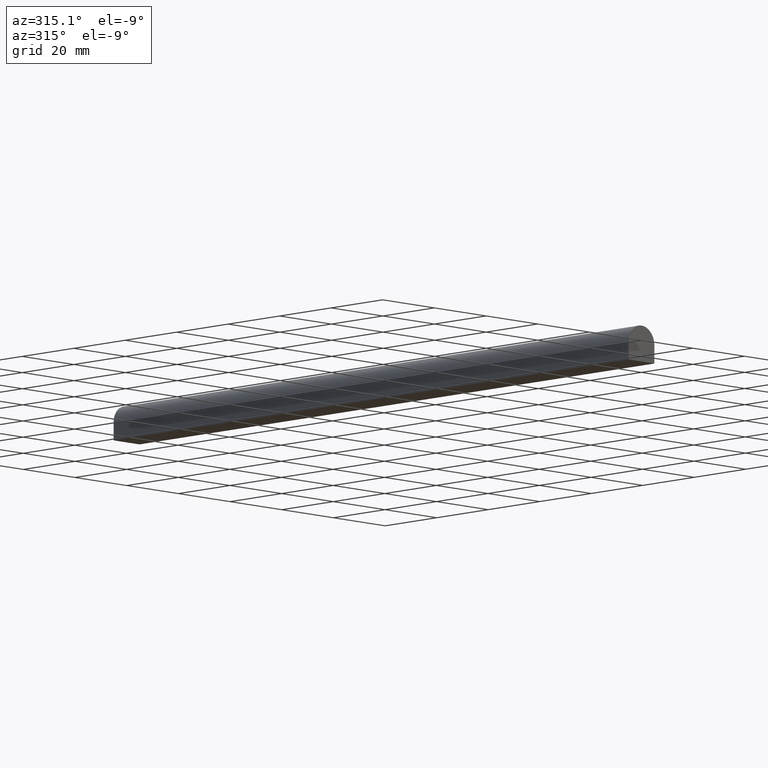
[diagram: clean part render]
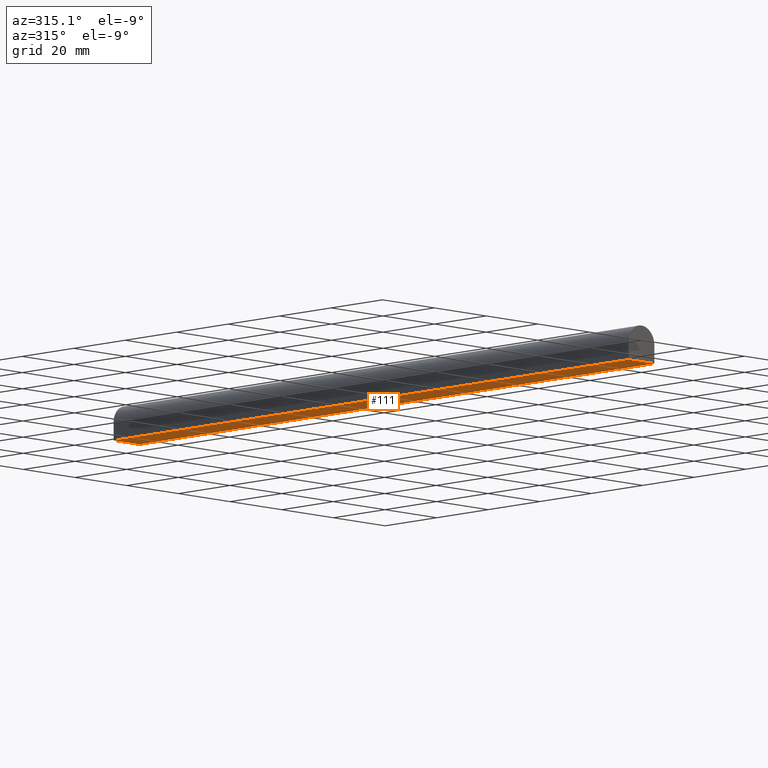
[diagram: same view with one face highlighted and labeled with its STEP entity id]
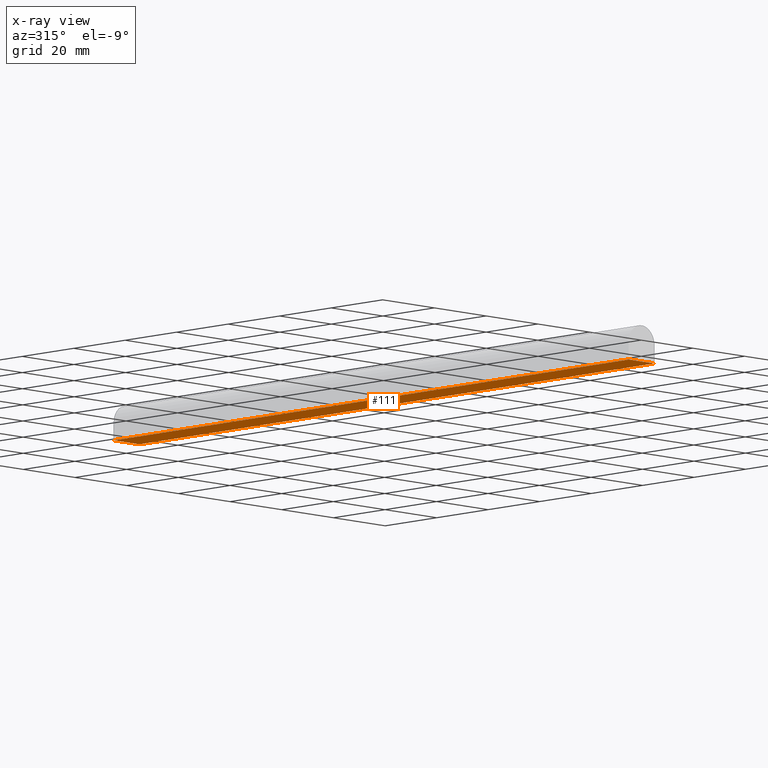
[diagram: x-ray of the same camera — body ghosted, the highlighted face saturated]
A machine part, auxiliary view. The second image highlights one B-rep face of the part: STEP entity #111.
The next image is the same camera in x-ray: the body ghosted, the highlighted face saturated — about 0% of this face is hidden behind the body in this view.
In plain terms, the highlighted planar face has unit normal (0, 0, -1).
Its self-contained STEP definition (entity closure, byte-faithful):
#3 = CARTESIAN_POINT ( 'NONE',  ( 5.000000000000000000, 200.0000000000000000, -5.000000000000000000 ) ) ;
#4 = EDGE_CURVE ( 'NONE', #214, #187, #230, .T. ) ;
#27 = VECTOR ( 'NONE', #226, 1000.000000000000000 ) ;
#28 = EDGE_CURVE ( 'NONE', #214, #206, #87, .T. ) ;
#41 = EDGE_CURVE ( 'NONE', #206, #90, #171, .T. ) ;
#42 = ORIENTED_EDGE ( 'NONE', *, *, #41, .T. ) ;
#57 = VECTOR ( 'NONE', #204, 1000.000000000000000 ) ;
#59 = CARTESIAN_POINT ( 'NONE',  ( -5.000000000000000000, 1000.000000000000000, -5.000000000000000000 ) ) ;
#61 = CARTESIAN_POINT ( 'NONE',  ( 5.000000000000000000, 0.0000000000000000000, -5.000000000000000000 ) ) ;
#63 = FACE_OUTER_BOUND ( 'NONE', #194, .T. ) ;
#69 = ORIENTED_EDGE ( 'NONE', *, *, #28, .T. ) ;
#71 = AXIS2_PLACEMENT_3D ( 'NONE', #175, #227, #79 ) ;
#79 = DIRECTION ( 'NONE',  ( -1.000000000000000000, 0.0000000000000000000, 0.0000000000000000000 ) ) ;
#87 = LINE ( 'NONE', #135, #220 ) ;
#90 = VERTEX_POINT ( 'NONE', #61 ) ;
#94 = ORIENTED_EDGE ( 'NONE', *, *, #4, .F. ) ;
#109 = DIRECTION ( 'NONE',  ( 1.000000000000000000, -0.0000000000000000000, -0.0000000000000000000 ) ) ;
#110 = VECTOR ( 'NONE', #201, 1000.000000000000000 ) ;
#111 = ADVANCED_FACE ( 'NONE', ( #63 ), #115, .T. ) ;
#115 = PLANE ( 'NONE',  #71 ) ;
#116 = CARTESIAN_POINT ( 'NONE',  ( 5.000000000000000000, 1000.000000000000000, -5.000000000000000000 ) ) ;
#131 = CARTESIAN_POINT ( 'NONE',  ( 0.0000000000000000000, 0.0000000000000000000, -5.000000000000000000 ) ) ;
#135 = CARTESIAN_POINT ( 'NONE',  ( 0.0000000000000000000, 200.0000000000000000, -5.000000000000000000 ) ) ;
#146 = CARTESIAN_POINT ( 'NONE',  ( -5.000000000000000000, 0.0000000000000000000, -5.000000000000000000 ) ) ;
#171 = LINE ( 'NONE', #116, #27 ) ;
#173 = ORIENTED_EDGE ( 'NONE', *, *, #231, .F. ) ;
#175 = CARTESIAN_POINT ( 'NONE',  ( -5.000000000000000000, 1000.000000000000000, -5.000000000000000000 ) ) ;
#187 = VERTEX_POINT ( 'NONE', #146 ) ;
#194 = EDGE_LOOP ( 'NONE', ( #173, #94, #69, #42 ) ) ;
#201 = DIRECTION ( 'NONE',  ( 0.0000000000000000000, -1.000000000000000000, 0.0000000000000000000 ) ) ;
#204 = DIRECTION ( 'NONE',  ( 1.000000000000000000, -0.0000000000000000000, -0.0000000000000000000 ) ) ;
#206 = VERTEX_POINT ( 'NONE', #3 ) ;
#207 = CARTESIAN_POINT ( 'NONE',  ( -5.000000000000000000, 200.0000000000000000, -5.000000000000000000 ) ) ;
#214 = VERTEX_POINT ( 'NONE', #207 ) ;
#220 = VECTOR ( 'NONE', #109, 1000.000000000000000 ) ;
#226 = DIRECTION ( 'NONE',  ( 0.0000000000000000000, -1.000000000000000000, 0.0000000000000000000 ) ) ;
#227 = DIRECTION ( 'NONE',  ( 0.0000000000000000000, 0.0000000000000000000, -1.000000000000000000 ) ) ;
#228 = LINE ( 'NONE', #131, #57 ) ;
#230 = LINE ( 'NONE', #59, #110 ) ;
#231 = EDGE_CURVE ( 'NONE', #187, #90, #228, .T. ) ;